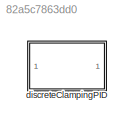
MODEL slx_82a5c7863dd0
KIND library
CONFIG AbsTol = auto
CONFIG EnableMultiTasking = off
CONFIG FixedStep = auto
CONFIG MaxStep = auto
CONFIG MinStep = auto
CONFIG RelTol = 1e-3
CONFIG SampleTimeConstraint = Unconstrained
CONFIG SolverName = VariableStepAuto
CONFIG StartTime = 0.0
CONFIG StopTime = 10.0
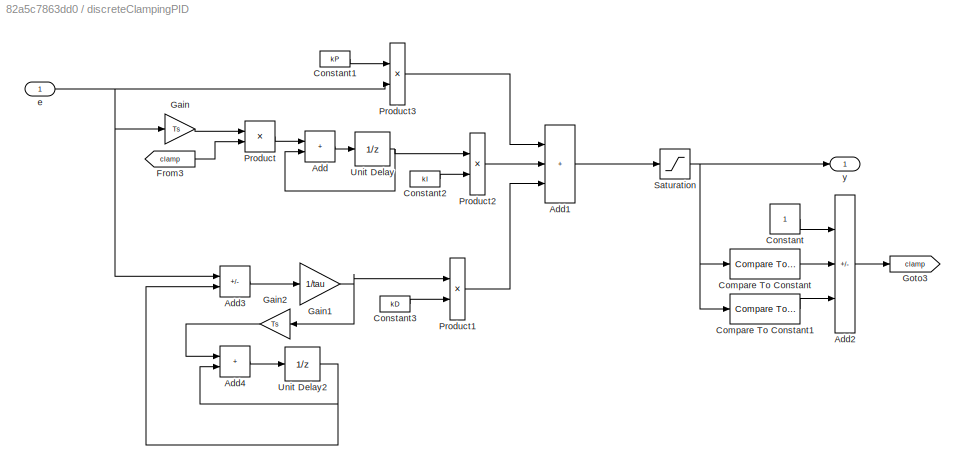
BLOCK [SubSystem] discreteClampingPID
  Ports = [1, 1]
  RequestExecContextInheritance = off
BLOCK [Sum] discreteClampingPID/Add
  IconShape = rectangular
  Ports = [2, 1]
BLOCK [Sum] discreteClampingPID/Add1
  IconShape = rectangular
  Inputs = +++
  Ports = [3, 1]
BLOCK [Sum] discreteClampingPID/Add2
  IconShape = rectangular
  Inputs = +--
  Ports = [3, 1]
BLOCK [Sum] discreteClampingPID/Add3
  IconShape = rectangular
  Inputs = +-
  Ports = [2, 1]
BLOCK [Sum] discreteClampingPID/Add4
  IconShape = rectangular
  Ports = [2, 1]
BLOCK [Reference] discreteClampingPID/Compare To Constant  REF=simulink/Logic and Bit
Operations/Compare
To Constant
  Ports = [1, 1]
  SourceBlock = simulink/Logic and Bit\nOperations/Compare\nTo Constant
  SourceProductBaseCode = SL
  SourceType = Compare To Constant
BLOCK [Reference] discreteClampingPID/Compare To Constant1  REF=simulink/Logic and Bit
Operations/Compare
To Constant
  Ports = [1, 1]
  SourceBlock = simulink/Logic and Bit\nOperations/Compare\nTo Constant
  SourceProductBaseCode = SL
  SourceType = Compare To Constant
BLOCK [Constant] discreteClampingPID/Constant
BLOCK [Constant] discreteClampingPID/Constant1
  Value = kP
BLOCK [Constant] discreteClampingPID/Constant2
  Value = kI
BLOCK [Constant] discreteClampingPID/Constant3
  Value = kD
BLOCK [From] discreteClampingPID/From3
  GotoTag = clamp
BLOCK [Gain] discreteClampingPID/Gain
  Gain = Ts
BLOCK [Gain] discreteClampingPID/Gain1
  Gain = 1/tau
BLOCK [Gain] discreteClampingPID/Gain2
  Gain = Ts
BLOCK [Goto] discreteClampingPID/Goto3
  GotoTag = clamp
BLOCK [Product] discreteClampingPID/Product
  Ports = [2, 1]
BLOCK [Product] discreteClampingPID/Product1
  Ports = [2, 1]
BLOCK [Product] discreteClampingPID/Product2
  Ports = [2, 1]
BLOCK [Product] discreteClampingPID/Product3
  Ports = [2, 1]
BLOCK [Saturate] discreteClampingPID/Saturation
  LowerLimit = lowerLim
  UpperLimit = upperLim
BLOCK [UnitDelay] discreteClampingPID/Unit Delay
  HasFrameUpgradeWarning = on
  SampleTime = -1
BLOCK [UnitDelay] discreteClampingPID/Unit Delay2
  HasFrameUpgradeWarning = on
  SampleTime = -1
BLOCK [Inport] discreteClampingPID/e
BLOCK [Outport] discreteClampingPID/y
LINE discreteClampingPID/Add1:1 -> discreteClampingPID/Saturation:1
LINE discreteClampingPID/Add2:1 -> discreteClampingPID/Goto3:1
LINE discreteClampingPID/Add3:1 -> discreteClampingPID/Gain1:1
LINE discreteClampingPID/Add4:1 -> discreteClampingPID/Unit Delay2:1
LINE discreteClampingPID/Add:1 -> discreteClampingPID/Unit Delay:1
LINE discreteClampingPID/Compare To Constant1:1 -> discreteClampingPID/Add2:3
LINE discreteClampingPID/Compare To Constant:1 -> discreteClampingPID/Add2:2
LINE discreteClampingPID/Constant1:1 -> discreteClampingPID/Product3:1
LINE discreteClampingPID/Constant2:1 -> discreteClampingPID/Product2:2
LINE discreteClampingPID/Constant3:1 -> discreteClampingPID/Product1:2
LINE discreteClampingPID/Constant:1 -> discreteClampingPID/Add2:1
LINE discreteClampingPID/From3:1 -> discreteClampingPID/Product:2
NET discreteClampingPID/Gain1:1 -> discreteClampingPID/Gain2:1, discreteClampingPID/Product1:1
LINE discreteClampingPID/Gain2:1 -> discreteClampingPID/Add4:1
LINE discreteClampingPID/Gain:1 -> discreteClampingPID/Product:1
LINE discreteClampingPID/Product1:1 -> discreteClampingPID/Add1:3
LINE discreteClampingPID/Product2:1 -> discreteClampingPID/Add1:2
LINE discreteClampingPID/Product3:1 -> discreteClampingPID/Add1:1
LINE discreteClampingPID/Product:1 -> discreteClampingPID/Add:1
NET discreteClampingPID/Saturation:1 -> discreteClampingPID/Compare To Constant1:1, discreteClampingPID/Compare To Constant:1, discreteClampingPID/y:1
NET discreteClampingPID/Unit Delay2:1 -> discreteClampingPID/Add3:2, discreteClampingPID/Add4:2
NET discreteClampingPID/Unit Delay:1 -> discreteClampingPID/Add:2, discreteClampingPID/Product2:1
NET discreteClampingPID/e:1 -> discreteClampingPID/Add3:1, discreteClampingPID/Gain:1, discreteClampingPID/Product3:2
note: NET lines group one-source signal fan-out (src -> all destinations, sorted); 1:1 wires keep LINE
